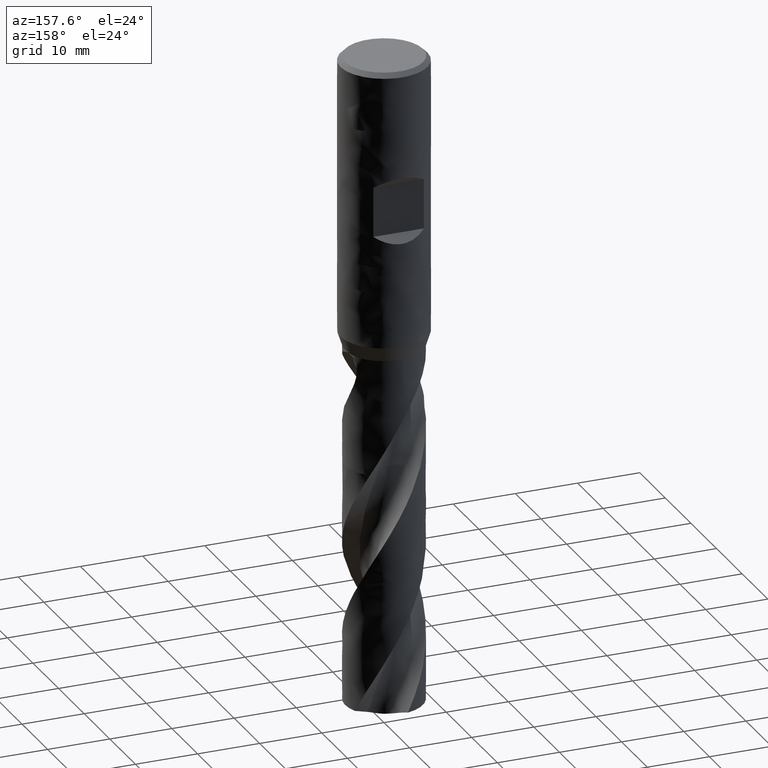
[diagram: clean part render]
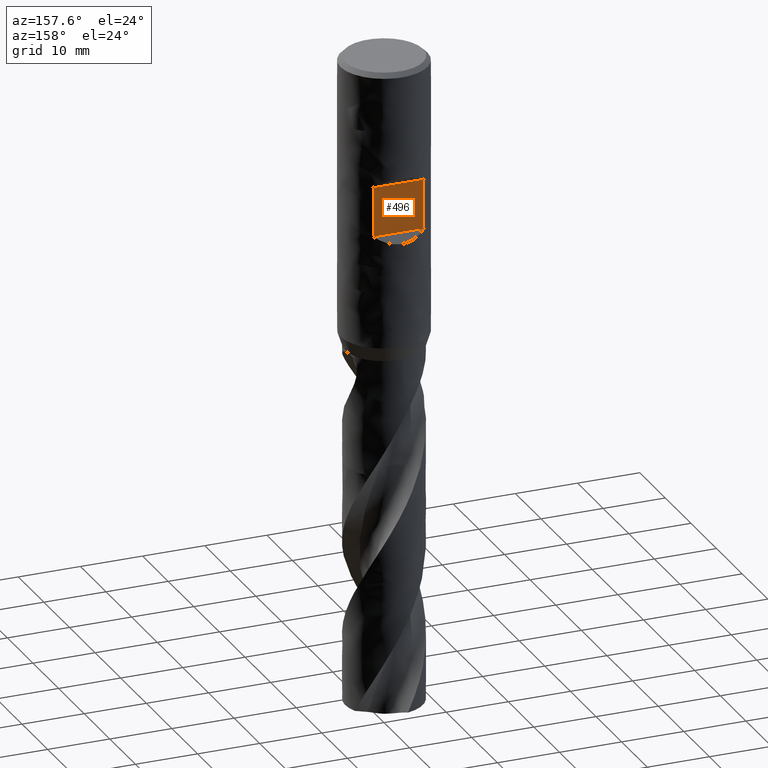
[diagram: same view with one face highlighted and labeled with its STEP entity id]
A machine part, auxiliary view. The second image highlights one B-rep face of the part: STEP entity #496.
In plain terms, the highlighted planar face has unit normal (0, 1, 0).
Its self-contained STEP definition (entity closure, byte-faithful):
#313 = VERTEX_POINT('', #314);
#314 = CARTESIAN_POINT('', (-4.06324993078201, 5.7, -18.5));
#315 = VERTEX_POINT('', #316);
#316 = CARTESIAN_POINT('', (4.06324993078201, 5.7, -18.5));
#386 = EDGE_CURVE('', #313, #387, #389, .T.);
#387 = VERTEX_POINT('', #388);
#388 = CARTESIAN_POINT('', (-4.06324993078201, 5.7, -26.5));
#389 = LINE('', #390, #391);
#390 = CARTESIAN_POINT('', (-4.06324993078201, 5.7, -18.5));
#391 = VECTOR('', #392, 7.99999999999999);
#392 = DIRECTION('', (0., 8.88178419700125E-16, -7.99999999999999));
#395 = VERTEX_POINT('', #396);
#396 = CARTESIAN_POINT('', (4.06324993078201, 5.7, -26.5));
#472 = EDGE_CURVE('', #315, #395, #473, .T.);
#473 = LINE('', #474, #475);
#474 = CARTESIAN_POINT('', (4.06324993078201, 5.7, -18.5));
#475 = VECTOR('', #476, 8.);
#476 = DIRECTION('', (0., 8.88178419700125E-16, -8.));
#496 = ADVANCED_FACE('', (#497), #513, .T.);
#497 = FACE_OUTER_BOUND('', #498, .T.);
#498 = EDGE_LOOP('', (#499, #500, #506, #507));
#499 = ORIENTED_EDGE('', *, *, #472, .T.);
#500 = ORIENTED_EDGE('', *, *, #501, .T.);
#501 = EDGE_CURVE('', #395, #387, #502, .T.);
#502 = LINE('', #503, #504);
#503 = CARTESIAN_POINT('', (4.06324993078201, 5.7, -26.5));
#504 = VECTOR('', #505, 8.12649986156402);
#505 = DIRECTION('', (-8.12649986156402, 8.88178419700125E-16, 0.));
#506 = ORIENTED_EDGE('', *, *, #386, .F.);
#507 = ORIENTED_EDGE('', *, *, #508, .F.);
#508 = EDGE_CURVE('', #315, #313, #509, .T.);
#509 = LINE('', #510, #511);
#510 = CARTESIAN_POINT('', (4.06324993078201, 5.7, -18.5));
#511 = VECTOR('', #512, 8.12649986156402);
#512 = DIRECTION('', (-8.12649986156402, 8.88178419700125E-16, 0.));
#513 = PLANE('', #514);
#514 = AXIS2_PLACEMENT_3D('', #515, #516, #517);
#515 = CARTESIAN_POINT('', (7., 5.7, -26.5));
#516 = DIRECTION('', (0., 1., 1.11022302462516E-16));
#517 = DIRECTION('', (-1., 0., 0.));